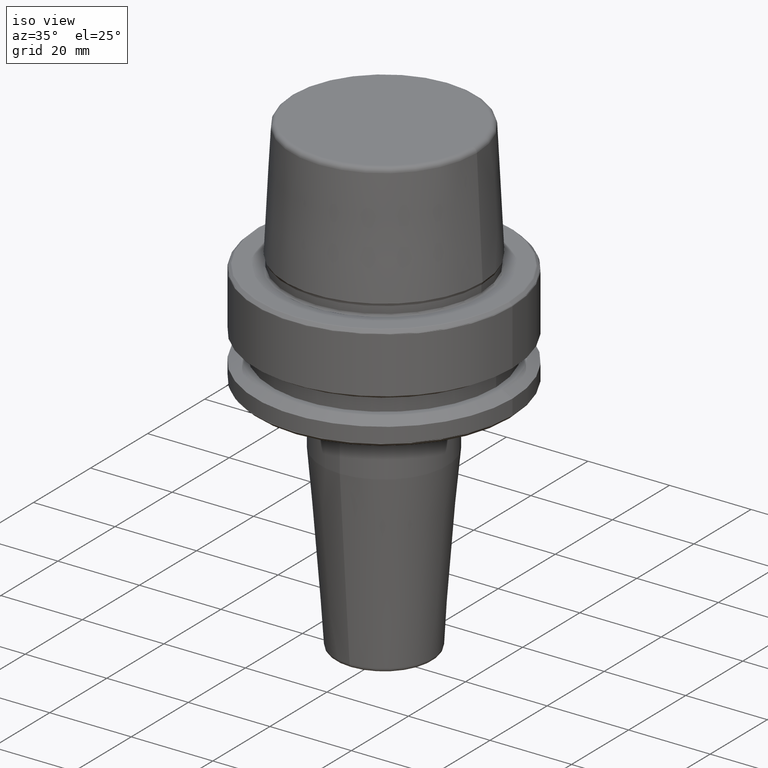
[diagram: clean part render]
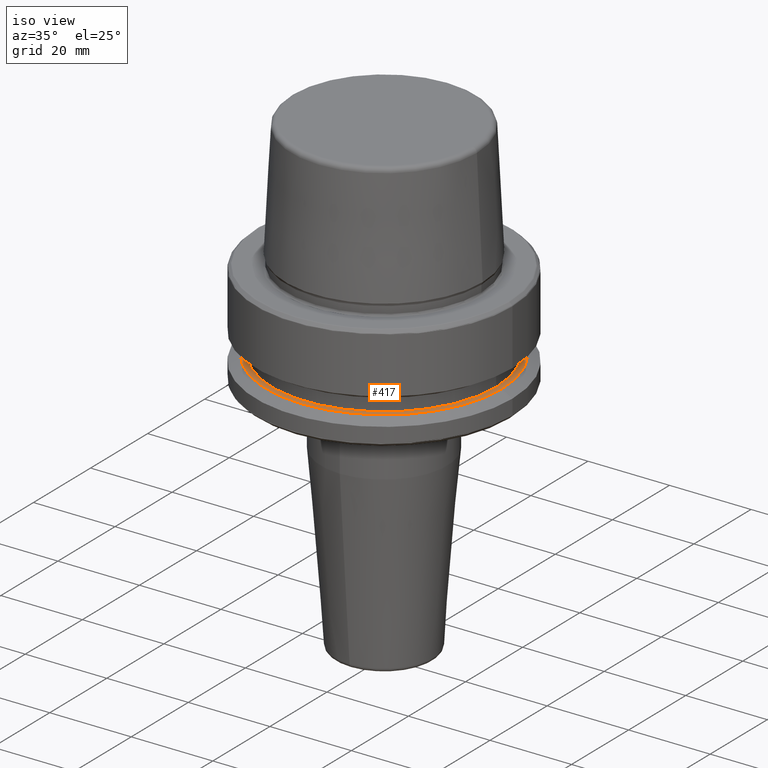
[diagram: same view with one face highlighted and labeled with its STEP entity id]
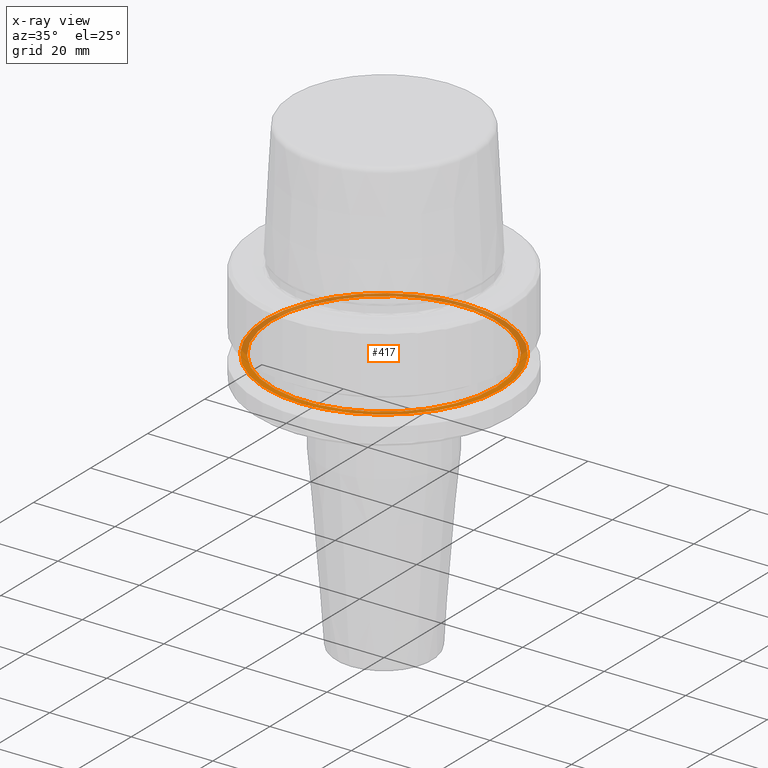
[diagram: x-ray of the same camera — body ghosted, the highlighted face saturated]
A machine part, iso view. The second image highlights one B-rep face of the part: STEP entity #417.
The next image is the same camera in x-ray: the body ghosted, the highlighted face saturated — about 50% of this face is hidden behind the body in this view.
In plain terms, the highlighted planar face has unit normal (0, 0, -1).
Its self-contained STEP definition (entity closure, byte-faithful):
#10 = PLANE ( 'NONE',  #333 ) ;
#35 = EDGE_LOOP ( 'NONE', ( #424, #513 ) ) ;
#111 = AXIS2_PLACEMENT_3D ( 'NONE', #1068, #900, #1140 ) ;
#114 = AXIS2_PLACEMENT_3D ( 'NONE', #696, #703, #787 ) ;
#214 = CIRCLE ( 'NONE', #396, 28.94089653438085100 ) ;
#263 = DIRECTION ( 'NONE',  ( 1.000000000000000000, 0.0000000000000000000, 0.0000000000000000000 ) ) ;
#333 = AXIS2_PLACEMENT_3D ( 'NONE', #730, #635, #698 ) ;
#386 = ORIENTED_EDGE ( 'NONE', *, *, #1148, .T. ) ;
#396 = AXIS2_PLACEMENT_3D ( 'NONE', #407, #809, #651 ) ;
#407 = CARTESIAN_POINT ( 'NONE',  ( 0.0000000000000000000, 0.0000000000000000000, -19.90000000000001600 ) ) ;
#417 = ADVANCED_FACE ( 'NONE', ( #964, #928 ), #10, .F. ) ;
#424 = ORIENTED_EDGE ( 'NONE', *, *, #1124, .F. ) ;
#479 = AXIS2_PLACEMENT_3D ( 'NONE', #1234, #1123, #263 ) ;
#513 = ORIENTED_EDGE ( 'NONE', *, *, #860, .F. ) ;
#517 = CARTESIAN_POINT ( 'NONE',  ( 28.94089653438085100, 3.700937523921292900E-015, -19.90000000000001600 ) ) ;
#545 = CARTESIAN_POINT ( 'NONE',  ( -27.49999999999999600, 3.367778697655220900E-015, -19.90000000000001600 ) ) ;
#622 = VERTEX_POINT ( 'NONE', #728 ) ;
#635 = DIRECTION ( 'NONE',  ( 0.0000000000000000000, 0.0000000000000000000, -1.000000000000000000 ) ) ;
#651 = DIRECTION ( 'NONE',  ( 1.000000000000000000, 0.0000000000000000000, 0.0000000000000000000 ) ) ;
#696 = CARTESIAN_POINT ( 'NONE',  ( 0.0000000000000000000, 0.0000000000000000000, -19.90000000000001600 ) ) ;
#698 = DIRECTION ( 'NONE',  ( -1.000000000000000000, 0.0000000000000000000, -0.0000000000000000000 ) ) ;
#703 = DIRECTION ( 'NONE',  ( -0.0000000000000000000, -0.0000000000000000000, 1.000000000000000000 ) ) ;
#728 = CARTESIAN_POINT ( 'NONE',  ( 27.49999999999999600, 0.0000000000000000000, -19.90000000000001600 ) ) ;
#730 = CARTESIAN_POINT ( 'NONE',  ( 0.0000000000000000000, 27.49999999999999600, -19.90000000000000900 ) ) ;
#787 = DIRECTION ( 'NONE',  ( 1.000000000000000000, 0.0000000000000000000, 0.0000000000000000000 ) ) ;
#809 = DIRECTION ( 'NONE',  ( -0.0000000000000000000, -0.0000000000000000000, 1.000000000000000000 ) ) ;
#825 = EDGE_CURVE ( 'NONE', #1175, #1199, #1141, .T. ) ;
#834 = ORIENTED_EDGE ( 'NONE', *, *, #825, .T. ) ;
#854 = CIRCLE ( 'NONE', #111, 27.49999999999999600 ) ;
#860 = EDGE_CURVE ( 'NONE', #1080, #622, #854, .T. ) ;
#873 = EDGE_LOOP ( 'NONE', ( #386, #834 ) ) ;
#900 = DIRECTION ( 'NONE',  ( -0.0000000000000000000, -0.0000000000000000000, 1.000000000000000000 ) ) ;
#928 = FACE_OUTER_BOUND ( 'NONE', #873, .T. ) ;
#964 = FACE_BOUND ( 'NONE', #35, .T. ) ;
#1006 = CIRCLE ( 'NONE', #114, 27.49999999999999600 ) ;
#1068 = CARTESIAN_POINT ( 'NONE',  ( 0.0000000000000000000, 0.0000000000000000000, -19.90000000000001600 ) ) ;
#1080 = VERTEX_POINT ( 'NONE', #545 ) ;
#1123 = DIRECTION ( 'NONE',  ( -0.0000000000000000000, -0.0000000000000000000, 1.000000000000000000 ) ) ;
#1124 = EDGE_CURVE ( 'NONE', #622, #1080, #1006, .T. ) ;
#1140 = DIRECTION ( 'NONE',  ( 1.000000000000000000, 0.0000000000000000000, 0.0000000000000000000 ) ) ;
#1141 = CIRCLE ( 'NONE', #479, 28.94089653438085100 ) ;
#1148 = EDGE_CURVE ( 'NONE', #1199, #1175, #214, .T. ) ;
#1175 = VERTEX_POINT ( 'NONE', #517 ) ;
#1177 = CARTESIAN_POINT ( 'NONE',  ( -28.94089653438085100, 0.0000000000000000000, -19.90000000000001600 ) ) ;
#1199 = VERTEX_POINT ( 'NONE', #1177 ) ;
#1234 = CARTESIAN_POINT ( 'NONE',  ( 0.0000000000000000000, 0.0000000000000000000, -19.90000000000001600 ) ) ;